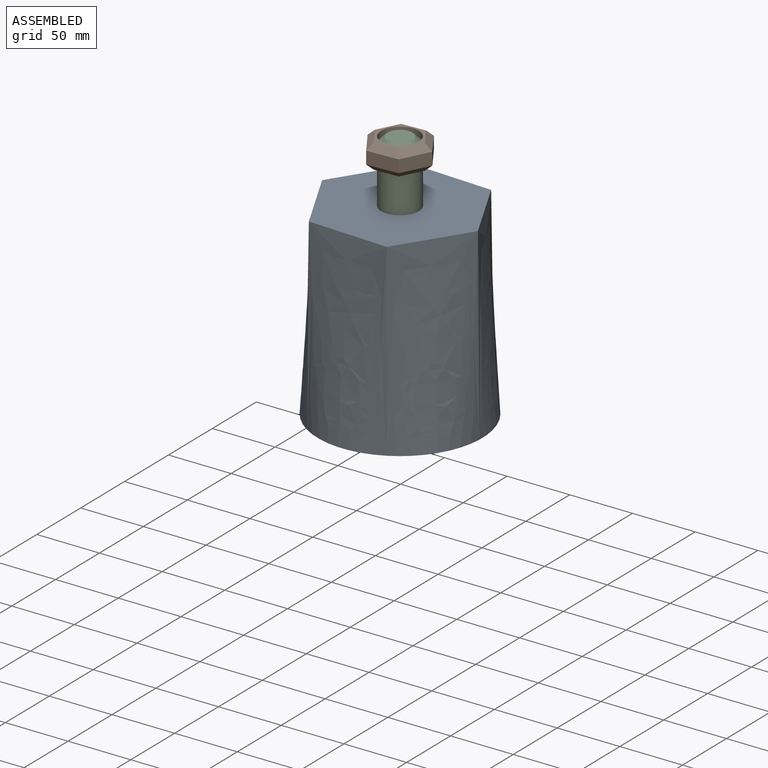
[diagram: assembled view]
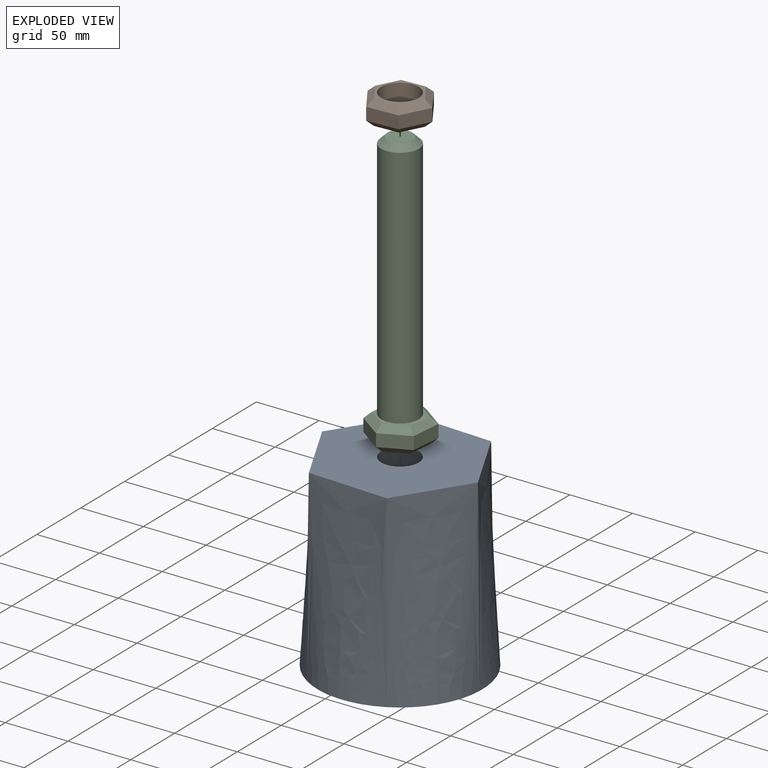
[diagram: exploded view]
GUIDED TOUR — MATED ASSEMBLY (Onshape document 0233c8aa589712ea44d390cf, AutoMate assembly 0233c8aa589712ea44d390cf_b0305d36e5f7ae8d243b2713_c7977e961428f21e358c333b_default)

This assembly has 3 components, labeled P0..P2 below (a component is one placed occurrence of a part; the same part can appear more than once), held together by 2 mates. A mate is a constraint between two components; its type names the relative motion it leaves free:
  FASTENED — locks the two components together rigidly (no relative motion).
Axis/direction vectors are unit vectors and 'through' points are millimeter coordinates, both in the assembly's world frame.

MATES
  1. FASTENED "Fastened 2": P1 <-> P2, direction (0.000, 0.000, 1.000) through (-16.73, 37.76, 196.14) mm
  2. FASTENED "Fastened 1": P2 <-> P0, direction (0.000, 0.000, 1.000) through (-16.73, 37.76, -3.86) mm

ASSEMBLY ORDER
  1. P1 — the base component [order verified]
  2. P2 [order verified]
  3. P0 [order verified]
Order-tag legend:
  [order verified] — this step's position reverses a verified removal order: the component was checked to insert without passing through the ones already placed.

Of the 3 components, 1 carries the full construction recipe — the FeatureScript program that regenerates the part's solid from scratch; the rest are supplied as boundary geometry only.
Each toured component is shown spotlighted twice — in the assembled view, then in the exploded view, where a leader line traces a displaced component back to its assembled socket (saturated green if recipe-attached, orange if geometry-only; every other component desaturated gray) — followed by its recipe or geometry summary and the mates that hold it.
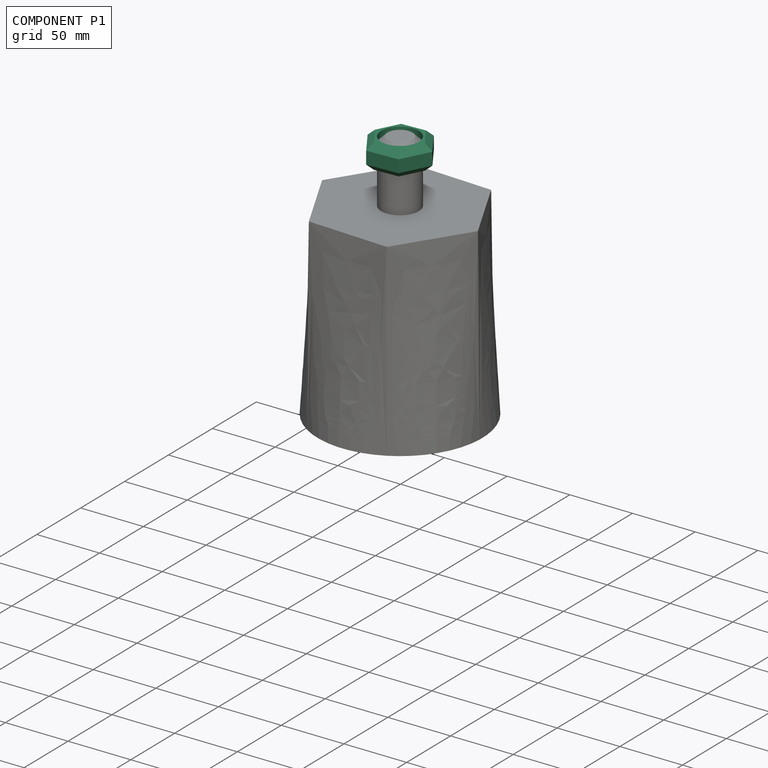
[diagram: component P1 — assembled]
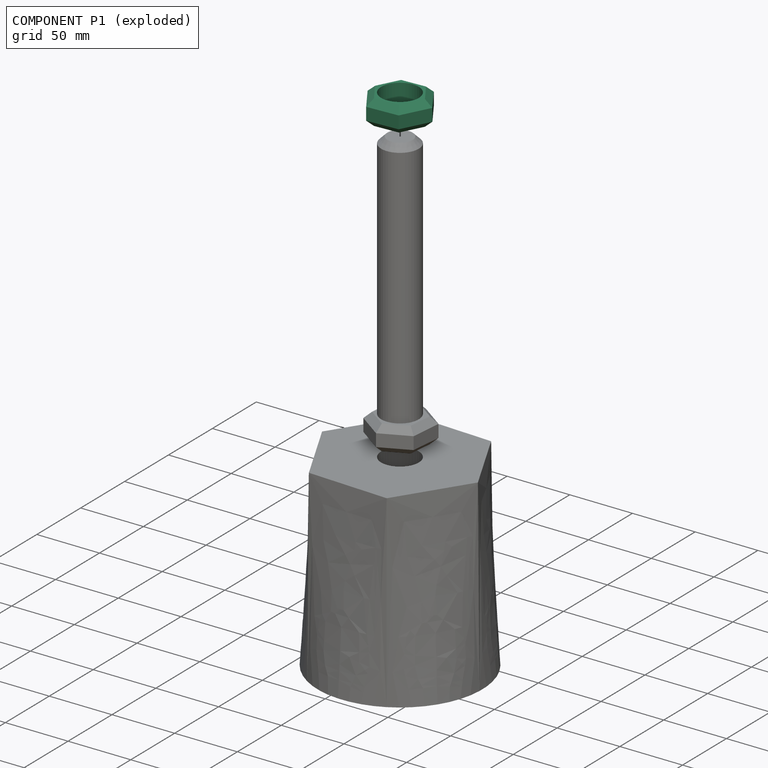
[diagram: component P1 — exploded]
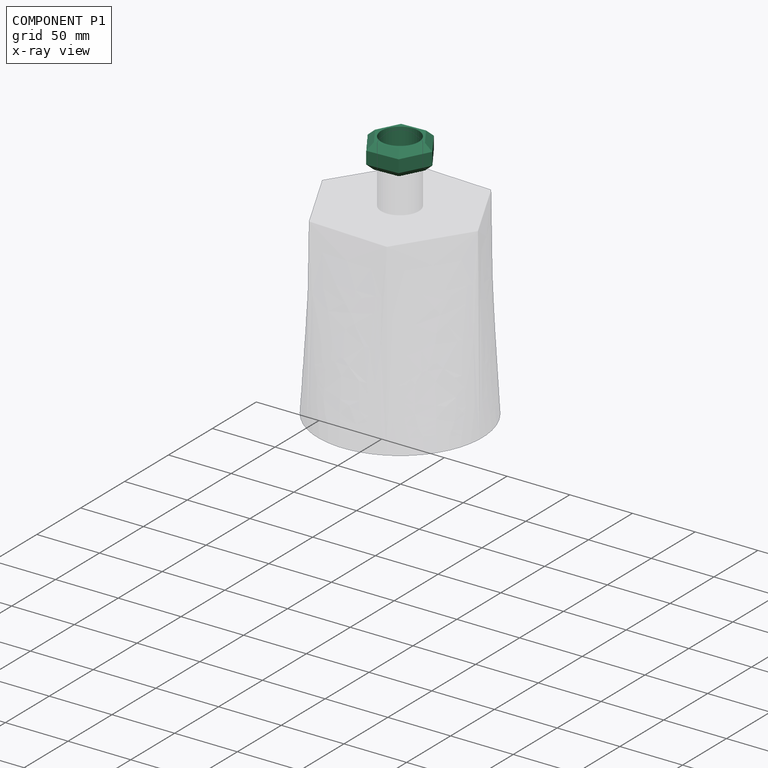
[diagram: component P1 — x-ray view]
COMPONENT P1 — recipe-attached (CADFS 00900861, mesh-verified: the recipe's output STEP matches this component's geometry to below the mesh-comparison resolution (tessellation chordal tolerance ~0.105 mm)).
Held by: FASTENED mate "Fastened 2" to P2.
Construction recipe (FeatureScript — the CAD program that rebuilds this solid; sketch coordinates are in the units given by the * unit suffixes, e.g. mm):

FeatureScript 1511;
import(path : "onshape/std/geometry.fs", version : "1511.0");
import(path : "onshape/std/common.fs", version : "1511.0");
const mm = millimeter;
const VERTEX = EntityType.VERTEX;
const EDGE = EntityType.EDGE;
const FACE = EntityType.FACE;
const BODY = EntityType.BODY;
function v(x, y){return vector(x, y);}
function OD(order){return orderDisambiguation(order);}
function OSD(set){return originalSetDisambiguation(set);}
function TD(topology){return topologyDisambiguation(topology);}
function TDD(query){return trueDependencyDisambiguation(query);}
function sQuery(a, b, c) {return sketchEntityQuery(a, b, c);}

annotation { "Feature Type Name" : "Feature", "Feature Type Description" : "" }
export const myFeature = defineFeature(function(context is Context, id is Id, definition is map)
    precondition{}
    {
        {
            var Q0;
            Q0=qCreatedBy(makeId("Top.planeOp"),FACE);
            var sketch = newSketch(context, id + "F0", { "sketchPlane" : qUnion([Q0])});
            skCircle(sketch, "E0.cCircle", {"center": v(0, 0) * mm, "radius": 25 * mm, "construction": true});
            skLineSegment(sketch, "E0.0", {"start": v(13.57, -21) * mm, "end": v(-11.4, -22.25) * mm});
            skLineSegment(sketch, "E0.1", {"start": v(-11.4, -22.25) * mm, "end": v(-24.97, -1.25) * mm});
            skLineSegment(sketch, "E0.2", {"start": v(-24.97, -1.25) * mm, "end": v(-13.57, 21) * mm});
            skLineSegment(sketch, "E0.3", {"start": v(-13.57, 21) * mm, "end": v(11.4, 22.25) * mm});
            skLineSegment(sketch, "E0.4", {"start": v(11.4, 22.25) * mm, "end": v(24.97, 1.25) * mm});
            skLineSegment(sketch, "E0.5", {"start": v(24.97, 1.25) * mm, "end": v(13.57, -21) * mm});
            skCircle(sketch, "E1", {"center": v(0, 0) * mm, "radius": 15 * mm});
            skSolve(sketch);
        }
        {
            var Q0;
            Q0=makeQuery(id+"F0.imprint","IMPRINT",FACE,{"disambiguationData":[TD([[makeQuery(id+"F0.imprint","IMPRINT",EDGE,{"derivedFrom":sQuery(id+"F0.wireOp",EDGE,"E1")}),1.0]])]});
            var Q1;
            Q1=makeQuery(id+"F0.imprint","IMPRINT",FACE,{"disambiguationData":[TD([[makeQuery(id+"F0.imprint","IMPRINT",EDGE,{"derivedFrom":sQuery(id+"F0.wireOp",EDGE,"E0.0")}),-1.0]])]});
            extrude(context, id + "F1", {"entities" : qUnion([Q0, Q1]), "depth" : 20 * mm, "offsetDistance" : 25 * mm});
        }
        {
            var Q0;
            Q0=makeQuery(id+"F1.opExtrude","CAP_FACE",FACE,{"disambiguationData":[OSD([sQuery(id+"F0.wireOp",EDGE,"E0.0"),sQuery(id+"F0.wireOp",EDGE,"E0.1"),sQuery(id+"F0.wireOp",EDGE,"E0.2"),sQuery(id+"F0.wireOp",EDGE,"E0.3"),sQuery(id+"F0.wireOp",EDGE,"E0.4"),sQuery(id+"F0.wireOp",EDGE,"E0.5")])],"isStart":true});
            var sketch = newSketch(context, id + "F2", { "sketchPlane" : qUnion([Q0])});
            skCircle(sketch, "E2", {"center": v(0, 0) * mm, "radius": 15 * mm});
            skSolve(sketch);
        }
        {
            var Q0;
            Q0 = qSketchRegion(id + "F2", true);
            extrude(context, id + "F3", {"entities" : qUnion([Q0]), "operationType" : NewBodyOperationType.REMOVE, "oppositeDirection" : true, "depth" : 33.7 * mm, "offsetDistance" : 25 * mm});
        }
        {
            var Q0;
            Q0=makeQuery(id+"F1.opExtrude","CAP_EDGE",EDGE,{"disambiguationData":[OSD([sQuery(id+"F0.wireOp",EDGE,"E0.0")])],"isStart":false});
            var Q1;
            Q1=makeQuery(id+"F1.opExtrude","CAP_EDGE",EDGE,{"disambiguationData":[OSD([sQuery(id+"F0.wireOp",EDGE,"E0.0")])],"isStart":true});
            var Q2;
            Q2=makeQuery(id+"F1.opExtrude","CAP_EDGE",EDGE,{"disambiguationData":[OSD([sQuery(id+"F0.wireOp",EDGE,"E0.1")])],"isStart":true});
            var Q3;
            Q3=makeQuery(id+"F1.opExtrude","CAP_EDGE",EDGE,{"disambiguationData":[OSD([sQuery(id+"F0.wireOp",EDGE,"E0.1")])],"isStart":false});
            var Q4;
            Q4=makeQuery(id+"F1.opExtrude","CAP_EDGE",EDGE,{"disambiguationData":[OSD([sQuery(id+"F0.wireOp",EDGE,"E0.2")])],"isStart":true});
            var Q5;
            Q5=makeQuery(id+"F1.opExtrude","CAP_EDGE",EDGE,{"disambiguationData":[OSD([sQuery(id+"F0.wireOp",EDGE,"E0.2")])],"isStart":false});
            var Q6;
            Q6=makeQuery(id+"F1.opExtrude","CAP_EDGE",EDGE,{"disambiguationData":[OSD([sQuery(id+"F0.wireOp",EDGE,"E0.3")])],"isStart":false});
            var Q7;
            Q7=makeQuery(id+"F1.opExtrude","CAP_EDGE",EDGE,{"disambiguationData":[OSD([sQuery(id+"F0.wireOp",EDGE,"E0.3")])],"isStart":true});
            var Q8;
            Q8=makeQuery(id+"F1.opExtrude","CAP_EDGE",EDGE,{"disambiguationData":[OSD([sQuery(id+"F0.wireOp",EDGE,"E0.4")])],"isStart":true});
            var Q9;
            Q9=makeQuery(id+"F1.opExtrude","CAP_EDGE",EDGE,{"disambiguationData":[OSD([sQuery(id+"F0.wireOp",EDGE,"E0.4")])],"isStart":false});
            var Q10;
            Q10=makeQuery(id+"F1.opExtrude","CAP_EDGE",EDGE,{"disambiguationData":[OSD([sQuery(id+"F0.wireOp",EDGE,"E0.5")])],"isStart":false});
            var Q11;
            Q11=makeQuery(id+"F1.opExtrude","CAP_EDGE",EDGE,{"disambiguationData":[OSD([sQuery(id+"F0.wireOp",EDGE,"E0.5")])],"isStart":true});
            chamfer(context, id + "F4", {"entities" : qUnion([Q0, Q1, Q2, Q3, Q4, Q5, Q6, Q7, Q8, Q9, Q10, Q11]), "width" : 5 * mm, "tangentPropagation" : true});
        }
    });
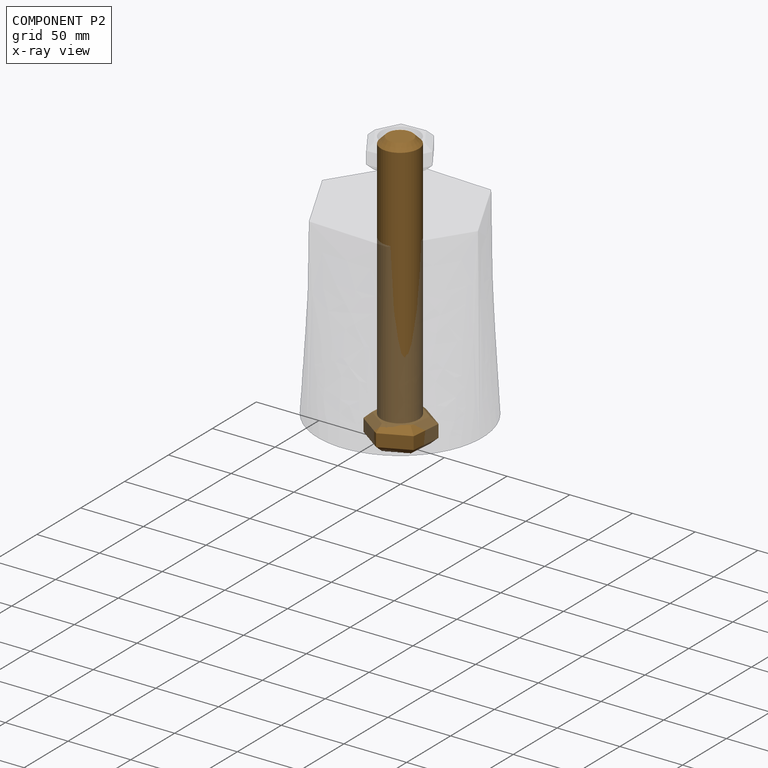
[diagram: component P2 — x-ray view]
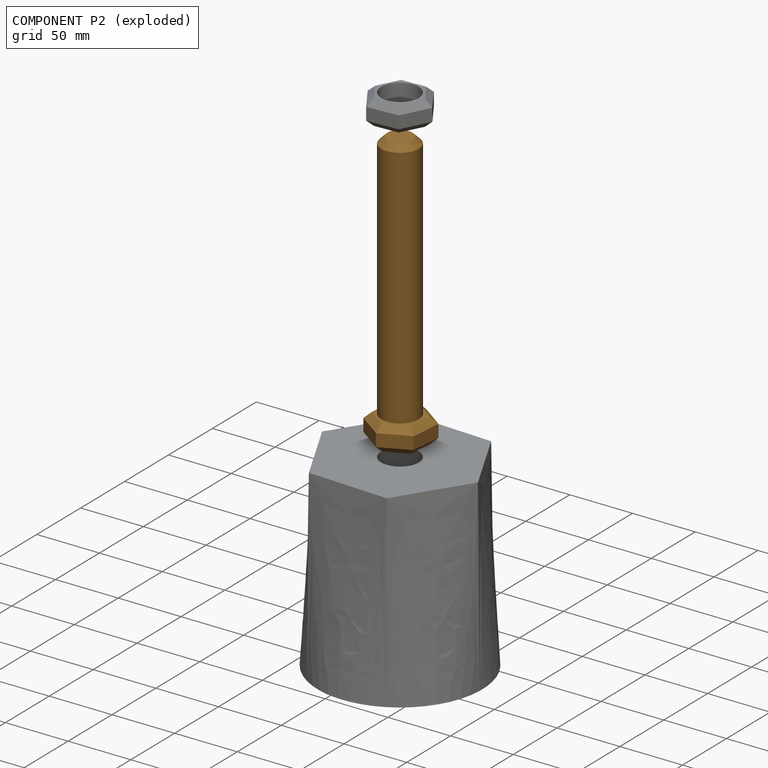
[diagram: component P2 — exploded]
COMPONENT P2 — geometry summary (no construction recipe available for this part):
  bounding box: 220.0 x 49.8 x 45.6 mm
  B-rep topology: 1 solid, 23 faces, 94 edges
  volume: 169339 mm^3 (34% of its bounding box)
  symmetry: 6-fold rotationally symmetric about the z axis
Held by: FASTENED mate "Fastened 2" to P1; FASTENED mate "Fastened 1" to P0.
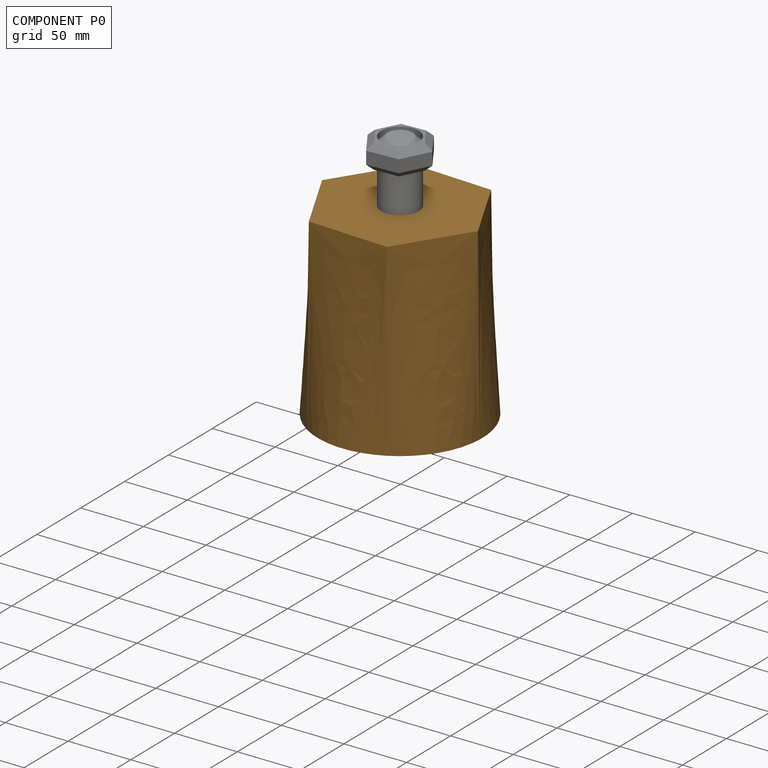
[diagram: component P0 — assembled]
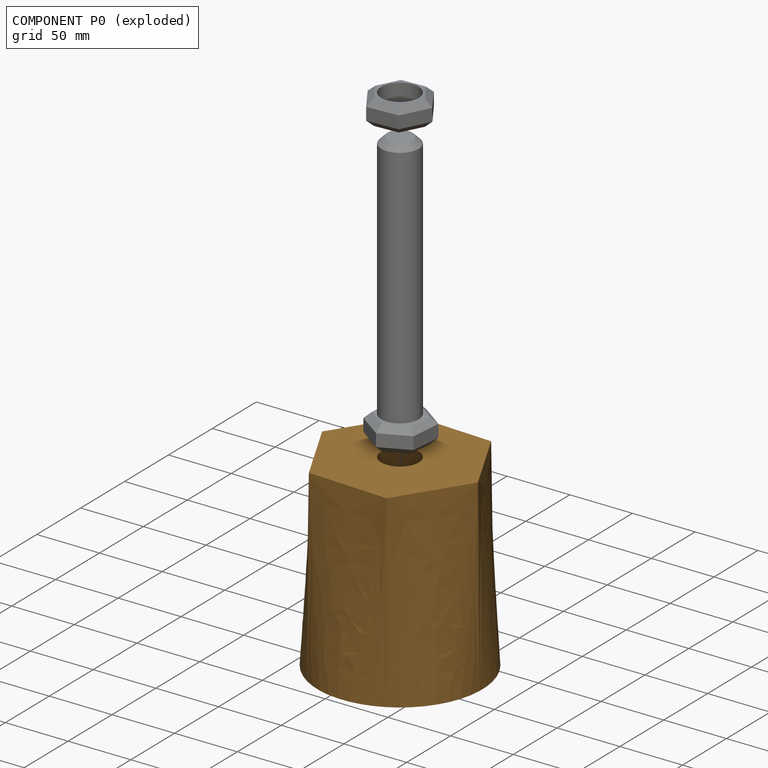
[diagram: component P0 — exploded]
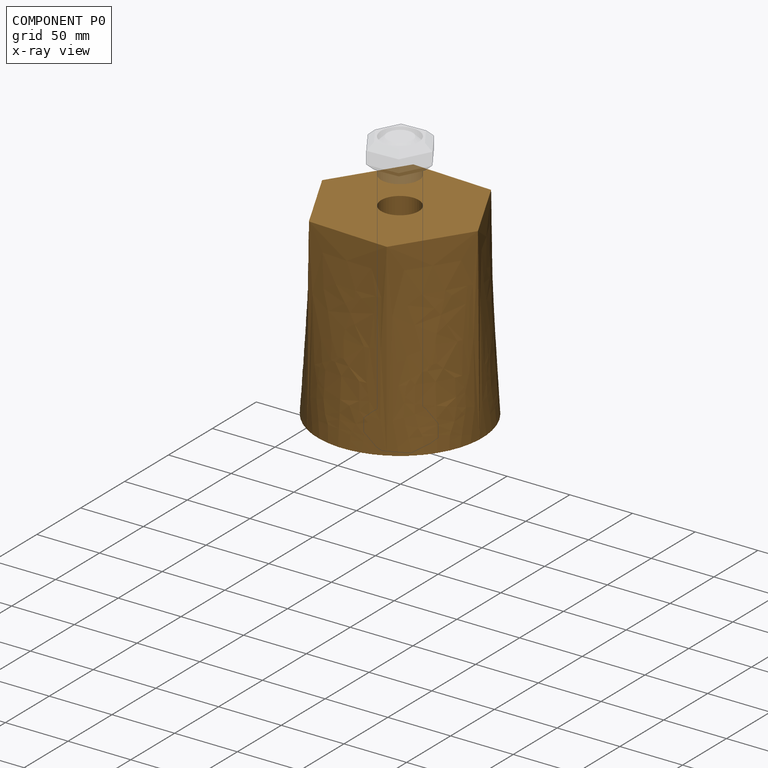
[diagram: component P0 — x-ray view]
COMPONENT P0 — geometry summary (no construction recipe available for this part):
  bounding box: 150.0 x 131.6 x 131.6 mm
  B-rep topology: 1 solid, 9 faces, 42 edges
  volume: 1711586 mm^3 (66% of its bounding box)
  symmetry: 6-fold rotationally symmetric about the z axis
Held by: FASTENED mate "Fastened 1" to P2.
PROVENANCE & LICENSES
Assembly (occurrences, transforms, mates, per-part STEP geometry): AutoMate dataset, Zenodo record 7776208, CC0.
Construction recipes: CADFS (HuggingFace VladPyatov/CADFS, CC-BY-4.0, layered over the ABC dataset), FeatureScript reconstruction programs keyed by ABC model id.
Join: ABC meta listings map ABC model id -> Onshape documentId; within a shared document, parts are matched by geometric signature (bounding-box dims + volume at 0.1% relative tolerance, exact B-rep face/solid counts).
Verification: 1 of this assembly's 3 components carries a recipe attachment, and every attachment is mesh-verified: the CADFS STEP and the AutoMate member STEP were compared as meshes in their shared local frame (symmetric sampled-point-to-mesh distance); worst across the 1 attachment: below the mesh-comparison resolution (tessellation chordal tolerance ~0.105 mm) on a 70 mm part.
Renders: orthographic iso camera (az 35 / el 25); the floor grid conveys scale (grid pitch printed in each image; no ruler). In the exploded view each component is displaced by its stored offset vector: the offsets alone carry the explosion direction (mate normal/axis signs are not orientation cues and do not encode it), and separation distances are assigned per mate-chain, not proportionally to assembly-order depth.
